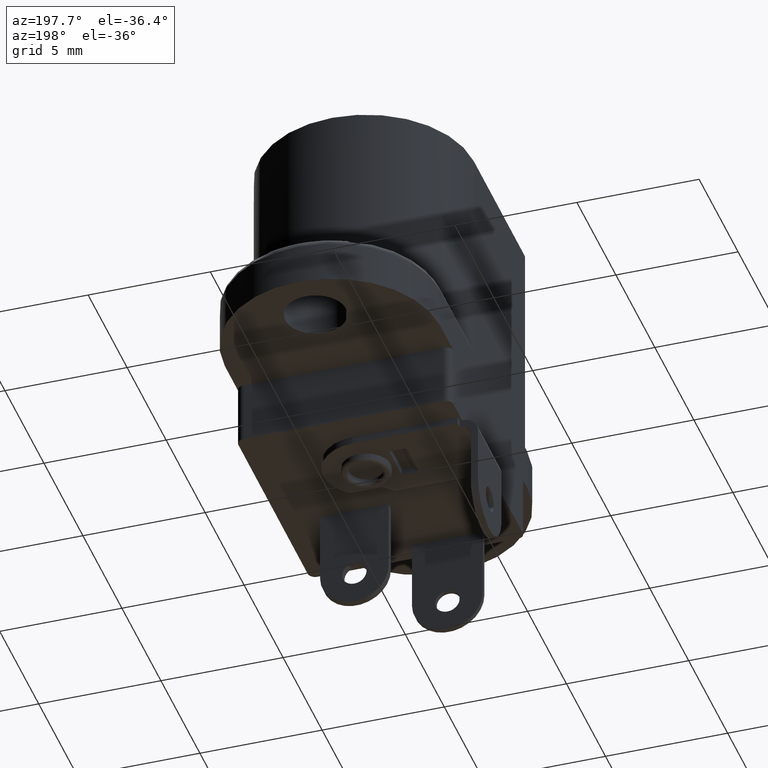
[diagram: clean part render]
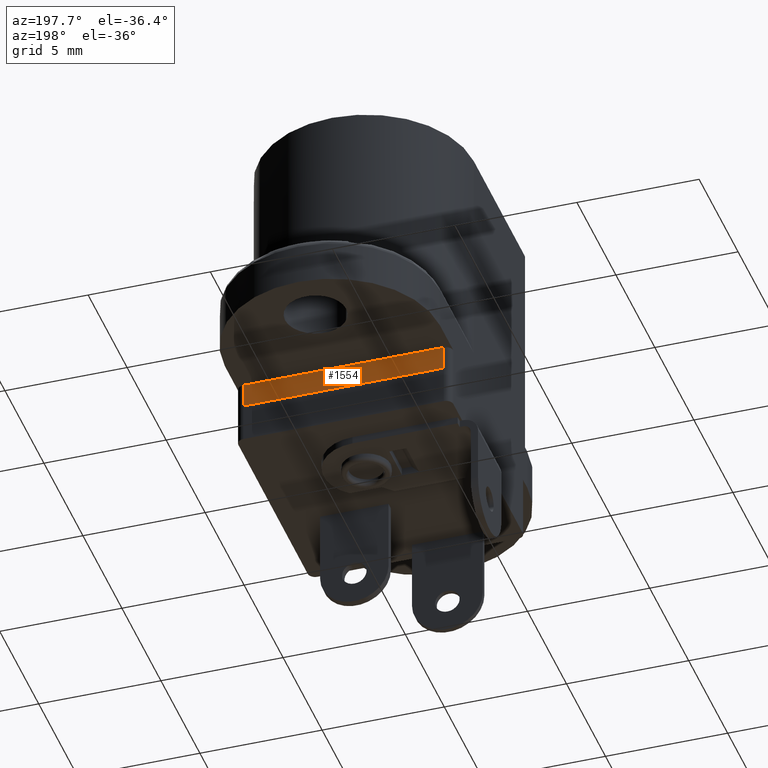
[diagram: same view with one face highlighted and labeled with its STEP entity id]
A machine part, auxiliary view. The second image highlights one B-rep face of the part: STEP entity #1554.
In plain terms, the highlighted planar face has unit normal (0, -1, 0).
Its self-contained STEP definition (entity closure, byte-faithful):
#81=PLANE('',#1714);
#212=LINE('',#2750,#346);
#213=LINE('',#2753,#347);
#217=LINE('',#2794,#351);
#218=LINE('',#2986,#352);
#346=VECTOR('',#2091,1000.);
#347=VECTOR('',#2094,1000.);
#351=VECTOR('',#2126,1000.);
#352=VECTOR('',#2135,1000.);
#460=FACE_OUTER_BOUND('',#556,.T.);
#556=EDGE_LOOP('',(#1358,#1359,#1360,#1361));
#762=VERTEX_POINT('',#2746);
#763=VERTEX_POINT('',#2748);
#764=VERTEX_POINT('',#2752);
#771=VERTEX_POINT('',#2793);
#958=EDGE_CURVE('',#763,#762,#212,.T.);
#959=EDGE_CURVE('',#762,#764,#213,.T.);
#973=EDGE_CURVE('',#764,#771,#217,.T.);
#976=EDGE_CURVE('',#771,#763,#218,.T.);
#1358=ORIENTED_EDGE('',*,*,#973,.F.);
#1359=ORIENTED_EDGE('',*,*,#959,.F.);
#1360=ORIENTED_EDGE('',*,*,#958,.F.);
#1361=ORIENTED_EDGE('',*,*,#976,.F.);
#1554=ADVANCED_FACE('',(#460),#81,.F.);
#1714=AXIS2_PLACEMENT_3D('',#2985,#2133,#2134);
#2091=DIRECTION('',(0.,0.,-1.));
#2094=DIRECTION('',(1.,0.,0.));
#2126=DIRECTION('',(0.,0.,1.));
#2133=DIRECTION('center_axis',(0.,-1.,0.));
#2134=DIRECTION('ref_axis',(0.,0.,-1.));
#2135=DIRECTION('',(-1.,0.,0.));
#2746=CARTESIAN_POINT('',(-4.1,2.925,-3.));
#2748=CARTESIAN_POINT('',(-4.1,2.925,-2.));
#2750=CARTESIAN_POINT('',(-4.1,2.925,-3.));
#2752=CARTESIAN_POINT('',(4.1,2.925,-3.));
#2753=CARTESIAN_POINT('',(4.1,2.925,-3.));
#2793=CARTESIAN_POINT('',(4.1,2.925,-2.));
#2794=CARTESIAN_POINT('',(4.1,2.925,-3.));
#2985=CARTESIAN_POINT('Origin',(4.1,2.925,-3.));
#2986=CARTESIAN_POINT('',(4.1,2.925,-2.));